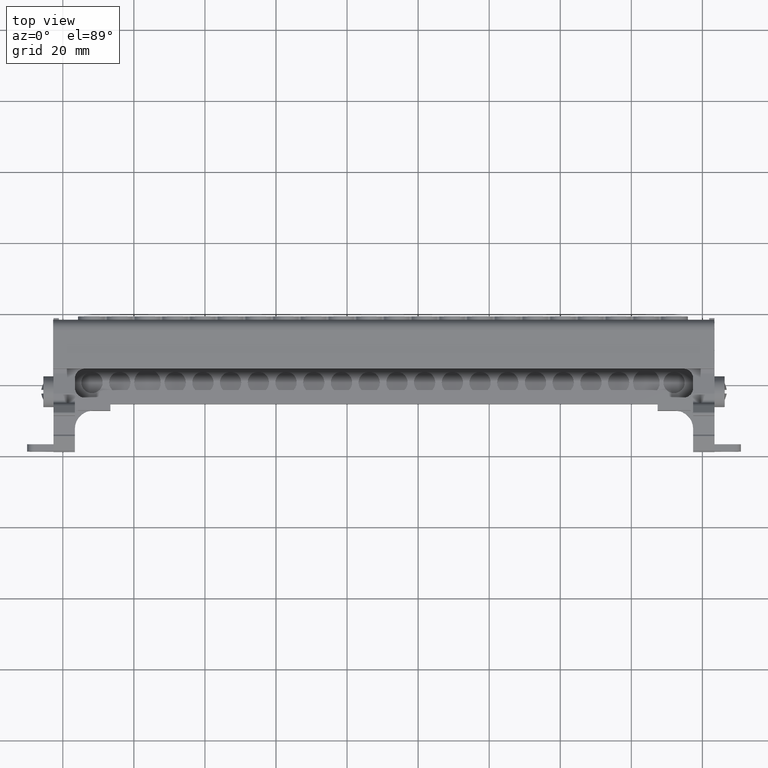
[diagram: clean part render]
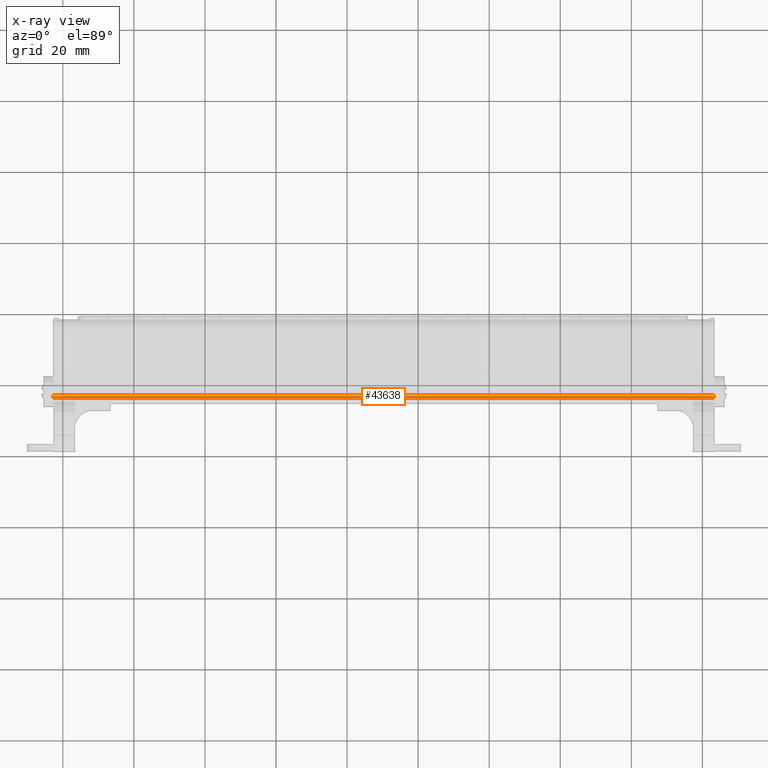
[diagram: x-ray — body ghosted, one internal face saturated and labeled with its STEP entity id]
A machine part, top view, then the same camera in x-ray: the body is ghosted and one INTERNAL B-rep face — a face not visible from any outside direction — is saturated and labeled: STEP entity #43638.
In plain terms, the highlighted planar face has unit normal (-0, 0, 1).
Its self-contained STEP definition (entity closure, byte-faithful):
#9146 = EDGE_CURVE ( 'NONE', #13232, #13010, #30761, .T. ) ;
#9151 = EDGE_CURVE ( 'NONE', #13302, #13028, #30746, .T. ) ;
#9448 = EDGE_CURVE ( 'NONE', #13010, #13028, #37503, .T. ) ;
#9499 = EDGE_CURVE ( 'NONE', #13232, #13302, #20354, .T. ) ;
#10475 = VECTOR ( 'NONE', #30760, 1000.000000000000000 ) ;
#10597 = VECTOR ( 'NONE', #30773, 1000.000000000000000 ) ;
#13010 = VERTEX_POINT ( 'NONE', #19903 ) ;
#13028 = VERTEX_POINT ( 'NONE', #19910 ) ;
#13232 = VERTEX_POINT ( 'NONE', #45679 ) ;
#13302 = VERTEX_POINT ( 'NONE', #45716 ) ;
#19903 = CARTESIAN_POINT ( 'NONE',  ( 103.2844330507417800, -43.68967324877391400, 87.47450357856980900 ) ) ;
#19910 = CARTESIAN_POINT ( 'NONE',  ( 103.2844330507418100, -43.00197390416542500, 87.47450357856978100 ) ) ;
#20333 = DIRECTION ( 'NONE',  ( -1.123605221868000100E-014, 1.000000000000000000, -1.654659315547040200E-014 ) ) ;
#20340 = CARTESIAN_POINT ( 'NONE',  ( -82.71658967541758000, -44.23038881453586400, 87.47450357856809000 ) ) ;
#20354 = LINE ( 'NONE', #20340, #22150 ) ;
#22095 = VECTOR ( 'NONE', #37505, 1000.000000000000000 ) ;
#22150 = VECTOR ( 'NONE', #20333, 1000.000000000000000 ) ;
#22874 = AXIS2_PLACEMENT_3D ( 'NONE', #23822, #23808, #23833 ) ;
#23805 = FACE_OUTER_BOUND ( 'NONE', #39099, .T. ) ;
#23808 = DIRECTION ( 'NONE',  ( -2.470852055924154800E-015, 1.654659315547036100E-014, 1.000000000000000000 ) ) ;
#23822 = CARTESIAN_POINT ( 'NONE',  ( -82.56664649360068600, -43.00197390416668200, 87.47450357856803300 ) ) ;
#23833 = DIRECTION ( 'NONE',  ( -1.000000000000000000, -1.123605221868000100E-014, -2.470852055923969000E-015 ) ) ;
#23842 = PLANE ( 'NONE',  #22874 ) ;
#30746 = LINE ( 'NONE', #30748, #10597 ) ;
#30748 = CARTESIAN_POINT ( 'NONE',  ( -82.56664649360068600, -43.00197390416668200, 87.47450357856803300 ) ) ;
#30757 = CARTESIAN_POINT ( 'NONE',  ( -82.56664649360068600, -43.68967324877506500, 87.47450357856806100 ) ) ;
#30760 = DIRECTION ( 'NONE',  ( 1.000000000000000000, 1.123605221868000100E-014, 2.470852055923969000E-015 ) ) ;
#30761 = LINE ( 'NONE', #30757, #10475 ) ;
#30773 = DIRECTION ( 'NONE',  ( 1.000000000000000000, 1.123605221868000100E-014, 2.470852055923969000E-015 ) ) ;
#34103 = ORIENTED_EDGE ( 'NONE', *, *, #9448, .T. ) ;
#34144 = ORIENTED_EDGE ( 'NONE', *, *, #9151, .F. ) ;
#34149 = ORIENTED_EDGE ( 'NONE', *, *, #9499, .F. ) ;
#34153 = ORIENTED_EDGE ( 'NONE', *, *, #9146, .T. ) ;
#37503 = LINE ( 'NONE', #37504, #22095 ) ;
#37504 = CARTESIAN_POINT ( 'NONE',  ( 103.2844330507417800, -44.23038881453468500, 87.47450357856982400 ) ) ;
#37505 = DIRECTION ( 'NONE',  ( -1.123605221868000100E-014, 1.000000000000000000, -1.654659315547040200E-014 ) ) ;
#39099 = EDGE_LOOP ( 'NONE', ( #34153, #34103, #34144, #34149 ) ) ;
#43638 = ADVANCED_FACE ( 'NONE', ( #23805 ), #23842, .T. ) ;
#45679 = CARTESIAN_POINT ( 'NONE',  ( -82.71658967541756600, -43.68967324877506500, 87.47450357856806100 ) ) ;
#45716 = CARTESIAN_POINT ( 'NONE',  ( -82.71658967541756600, -43.00197390416668200, 87.47450357856803300 ) ) ;